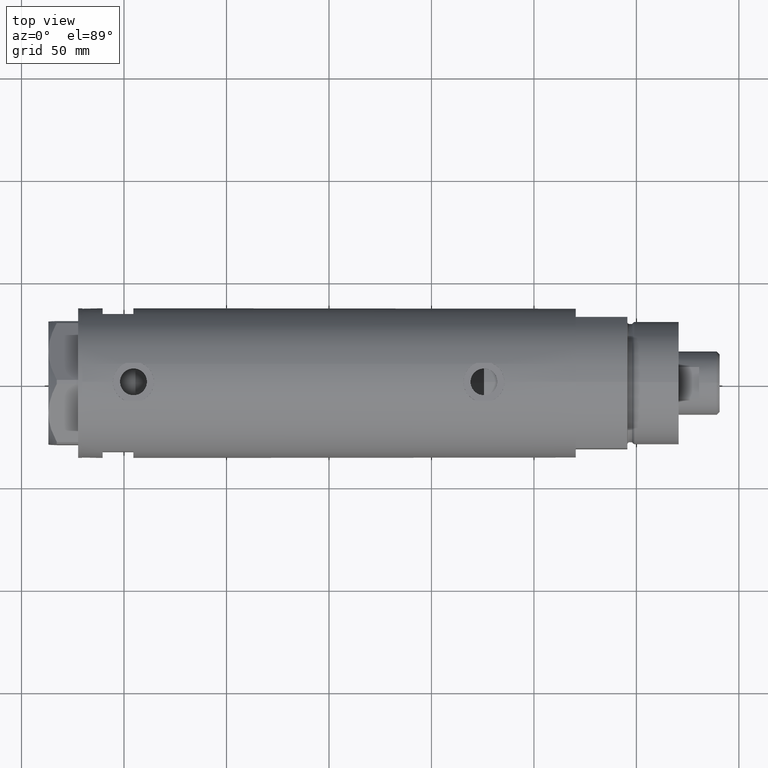
[diagram: clean part render]
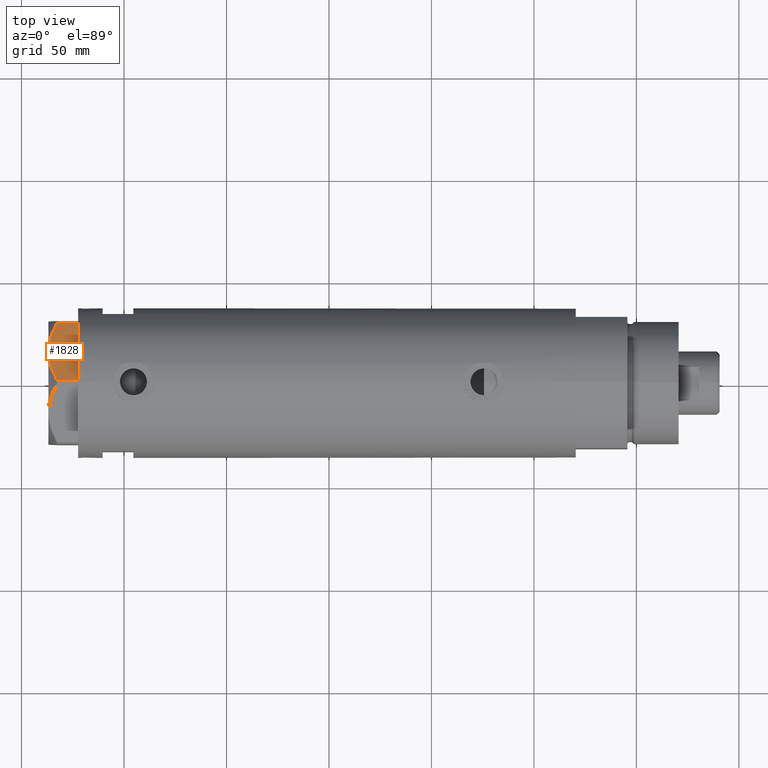
[diagram: same view with one face highlighted and labeled with its STEP entity id]
A machine part, top view. The second image highlights one B-rep face of the part: STEP entity #1828.
In plain terms, the highlighted planar face has unit normal (-0, -0.5, -0.866).
Its self-contained STEP definition (entity closure, byte-faithful):
#114 = EDGE_LOOP ( 'NONE', ( #2871, #3478, #2953, #973, #4872 ) ) ;
#118 = CARTESIAN_POINT ( 'NONE',  ( 23.36084816446653889, -21.15362417512481130, 12.99122625442232604 ) ) ;
#148 = CARTESIAN_POINT ( 'NONE',  ( 17.43031680809873762, -24.57761805016126644, 14.50000000000000711 ) ) ;
#180 = DIRECTION ( 'NONE',  ( -0.8660254037844389297, -0.4999999999999996114, 0.000000000000000000 ) ) ;
#228 = VERTEX_POINT ( 'NONE', #3020 ) ;
#561 = CARTESIAN_POINT ( 'NONE',  ( 27.92668431253404293, -18.51753744596231854, 11.01056656432685266 ) ) ;
#590 = CARTESIAN_POINT ( 'NONE',  ( 26.80734602959450541, -19.16378770493171402, 11.56973717813738212 ) ) ;
#633 = CARTESIAN_POINT ( 'NONE',  ( 11.92931894229900891, -27.75362064879230317, 14.29910535634587276 ) ) ;
#690 = CARTESIAN_POINT ( 'NONE',  ( 8.929227268745744794, -29.48572438411182262, 13.71922620632299861 ) ) ;
#786 = VERTEX_POINT ( 'NONE', #1536 ) ;
#973 = ORIENTED_EDGE ( 'NONE', *, *, #5456, .T. ) ;
#1536 = CARTESIAN_POINT ( 'NONE',  ( 29.03005154776141694, -17.88050807568878042, 0.000000000000000000 ) ) ;
#1595 = VECTOR ( 'NONE', #4491, 1000.000000000000000 ) ;
#1607 = CARTESIAN_POINT ( 'NONE',  ( 13.77383861939864218, -26.68868671669325821, 14.47500996539162088 ) ) ;
#1638 = CARTESIAN_POINT ( 'NONE',  ( 12.54037849421161077, -27.40082525200466179, 14.37423503257921986 ) ) ;
#1793 = DIRECTION ( 'NONE',  ( 0.000000000000000000, 0.000000000000000000, -1.000000000000000000 ) ) ;
#1825 = CARTESIAN_POINT ( 'NONE',  ( 29.03005154776142049, -17.88050807568878042, 10.40518423703603901 ) ) ;
#1828 = ADVANCED_FACE ( 'NONE', ( #3820 ), #5640, .F. ) ;
#1846 = VERTEX_POINT ( 'NONE', #2476 ) ;
#1935 = CARTESIAN_POINT ( 'NONE',  ( 29.03005154776142049, -17.88050807568878042, 10.40518423703603901 ) ) ;
#2044 = CARTESIAN_POINT ( 'NONE',  ( -5.841958412462644145E-15, -34.64101615137753498, 0.000000000000000000 ) ) ;
#2258 = LINE ( 'NONE', #4117, #5318 ) ;
#2313 = VERTEX_POINT ( 'NONE', #2578 ) ;
#2453 = CARTESIAN_POINT ( 'NONE',  ( 3.175372020745254709, -32.80771426042306160, 11.61522964162834803 ) ) ;
#2476 = CARTESIAN_POINT ( 'NONE',  ( 0.9699484522385750651, -34.08101615137752560, 0.000000000000000000 ) ) ;
#2578 = CARTESIAN_POINT ( 'NONE',  ( 0.9699484522384129725, -34.08101615137761797, 10.40518423703596262 ) ) ;
#2617 = EDGE_CURVE ( 'NONE', #1846, #786, #5651, .T. ) ;
#2807 = CARTESIAN_POINT ( 'NONE',  ( 22.77266513462829067, -21.49321180573469547, 13.19311392138146566 ) ) ;
#2871 = ORIENTED_EDGE ( 'NONE', *, *, #4744, .F. ) ;
#2906 = CARTESIAN_POINT ( 'NONE',  ( 14.99999999999998757, -25.98076211353316722, 14.50000000000000000 ) ) ;
#2953 = ORIENTED_EDGE ( 'NONE', *, *, #2617, .T. ) ;
#3020 = CARTESIAN_POINT ( 'NONE',  ( 14.99999999999998757, -25.98076211353316722, 14.50000000000000000 ) ) ;
#3092 = CARTESIAN_POINT ( 'NONE',  ( 29.03005154776141694, -17.88050807568878042, 14.50000000000000000 ) ) ;
#3367 = CARTESIAN_POINT ( 'NONE',  ( -5.841958412462644145E-15, -34.64101615137753498, 14.50000000000000000 ) ) ;
#3408 = DIRECTION ( 'NONE',  ( 0.8660254037844389297, 0.4999999999999996114, 0.000000000000000000 ) ) ;
#3478 = ORIENTED_EDGE ( 'NONE', *, *, #4485, .T. ) ;
#3500 = CARTESIAN_POINT ( 'NONE',  ( 14.99999999999998757, -25.98076211353316722, 14.50000000000000000 ) ) ;
#3554 = B_SPLINE_CURVE_WITH_KNOTS ( 'NONE', 3,
 ( #4769, #2453, #3917, #690, #4827, #633, #1638, #1607, #5295, #3500 ),
 .UNSPECIFIED., .F., .F.,
 ( 4, 2, 2, 2, 4 ),
 ( 0.001230196178133386971, 0.009592363676680742274, 0.01377344742595442220, 0.01586398930059126217, 0.01795453117522810213 ),
 .UNSPECIFIED. ) ;
#3605 = EDGE_CURVE ( 'NONE', #228, #5911, #4213, .T. ) ;
#3789 = CARTESIAN_POINT ( 'NONE',  ( 19.82219921729533141, -23.19666409734169221, 14.10092492974135503 ) ) ;
#3820 = FACE_OUTER_BOUND ( 'NONE', #114, .T. ) ;
#3917 = CARTESIAN_POINT ( 'NONE',  ( 5.430403497542005020, -31.50577123026336679, 12.63511531451933045 ) ) ;
#4064 = AXIS2_PLACEMENT_3D ( 'NONE', #3367, #4311, #180 ) ;
#4117 = CARTESIAN_POINT ( 'NONE',  ( 0.9699484522385750651, -34.08101615137752560, 14.50000000000000000 ) ) ;
#4213 = B_SPLINE_CURVE_WITH_KNOTS ( 'NONE', 3,
 ( #2906, #148, #3789, #2807, #118, #5634, #4726, #590, #561, #1935 ),
 .UNSPECIFIED., .F., .F.,
 ( 4, 2, 2, 2, 4 ),
 ( 0.01795453117522810213, 0.02625795893839791284, 0.02833381587919036812, 0.03040967281998282340, 0.03456138670156773396 ),
 .UNSPECIFIED. ) ;
#4311 = DIRECTION ( 'NONE',  ( -0.4999999999999996114, 0.8660254037844389297, 0.000000000000000000 ) ) ;
#4485 = EDGE_CURVE ( 'NONE', #2313, #1846, #2258, .T. ) ;
#4491 = DIRECTION ( 'NONE',  ( 0.000000000000000000, 0.000000000000000000, 1.000000000000000000 ) ) ;
#4726 = CARTESIAN_POINT ( 'NONE',  ( 25.09761465865700103, -20.15090157218441647, 12.31959434659020047 ) ) ;
#4744 = EDGE_CURVE ( 'NONE', #2313, #228, #3554, .T. ) ;
#4769 = CARTESIAN_POINT ( 'NONE',  ( 0.9699484522384129725, -34.08101615137761797, 10.40518423703596262 ) ) ;
#4827 = CARTESIAN_POINT ( 'NONE',  ( 10.11505054612624477, -28.80108899570488035, 14.00566141361761296 ) ) ;
#4872 = ORIENTED_EDGE ( 'NONE', *, *, #3605, .F. ) ;
#4966 = LINE ( 'NONE', #3092, #1595 ) ;
#5123 = VECTOR ( 'NONE', #3408, 1000.000000000000000 ) ;
#5295 = CARTESIAN_POINT ( 'NONE',  ( 14.38812268849981457, -26.33402964403881086, 14.50000000000000533 ) ) ;
#5318 = VECTOR ( 'NONE', #1793, 1000.000000000000000 ) ;
#5456 = EDGE_CURVE ( 'NONE', #786, #5911, #4966, .T. ) ;
#5634 = CARTESIAN_POINT ( 'NONE',  ( 24.52256617298829156, -20.48290597018233328, 12.55468001512206833 ) ) ;
#5640 = PLANE ( 'NONE',  #4064 ) ;
#5651 = LINE ( 'NONE', #2044, #5123 ) ;
#5911 = VERTEX_POINT ( 'NONE', #1825 ) ;